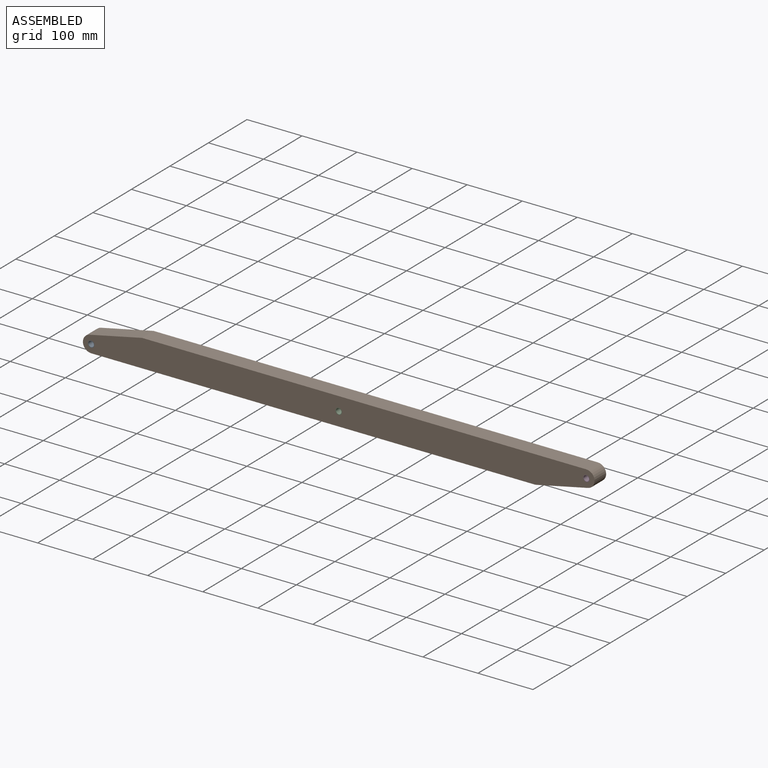
[diagram: assembled view]
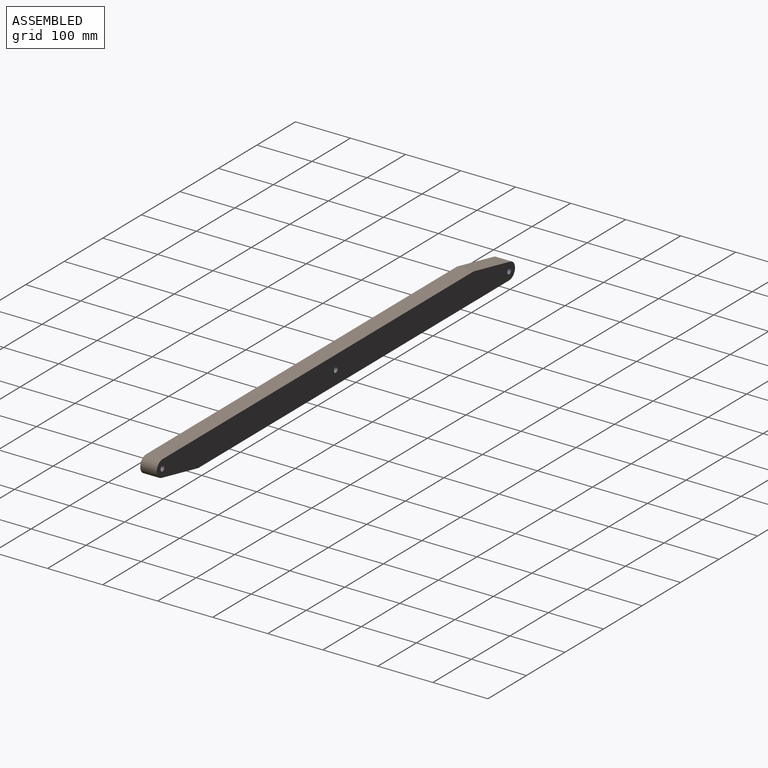
[diagram: assembled view, second angle]
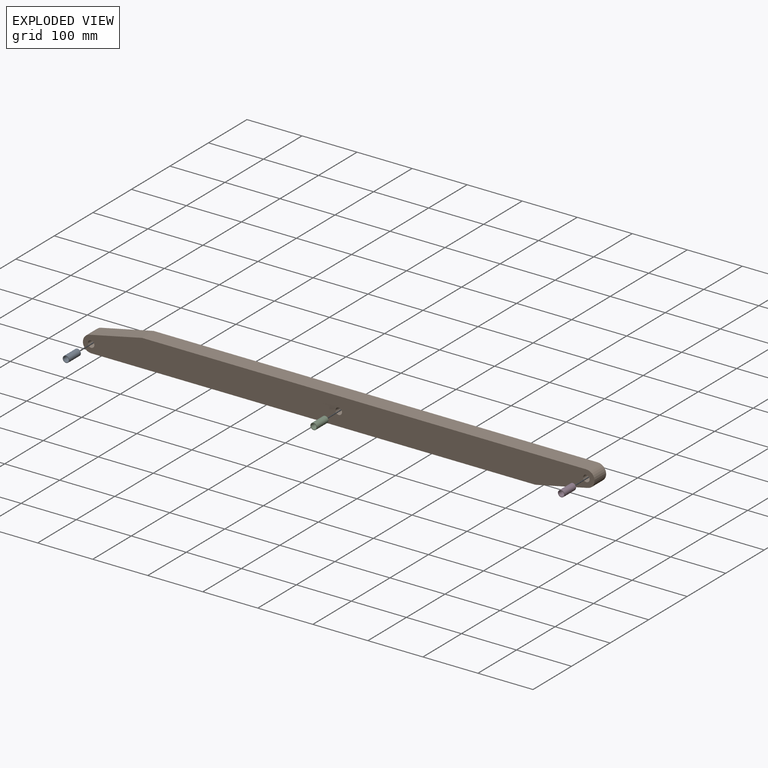
[diagram: exploded view]
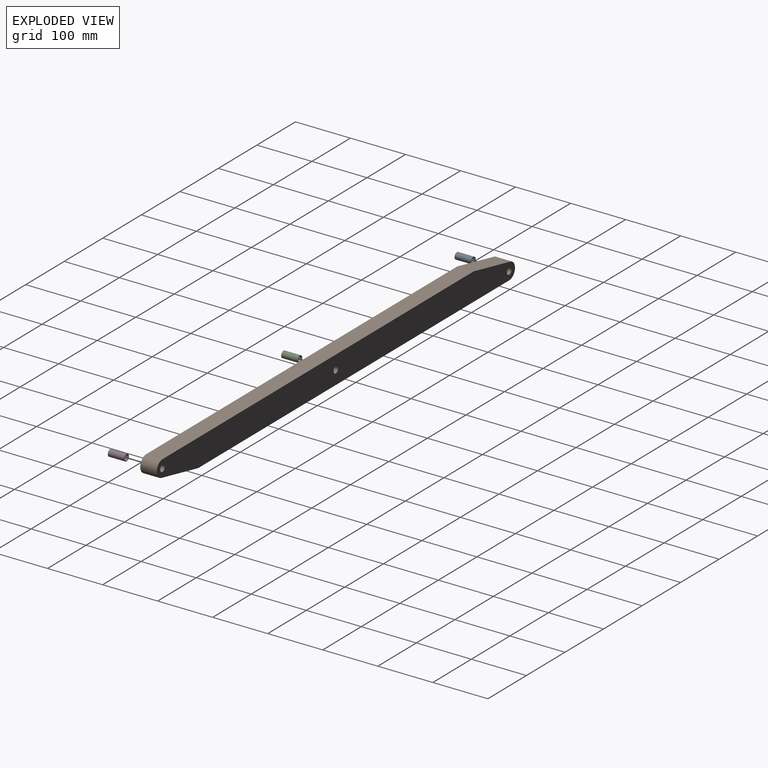
[diagram: exploded view, second angle]
ASSEMBLY  parts=4 mates=3
PART A: 4 faces, bbox 12x30x12 mm
  f0: cylinder r=5mm len=30mm, axis (0,1,0), area 942.5mm2, adj f2,f3
  f1: cylinder r=6mm len=30mm, axis (0,1,0), area 1131mm2, adj f2,f3
  f2: plane 12x12mm, normal (0,-1,0), area 34.6mm2, adj f0,f1
  f3: plane 12x12mm, normal (0,1,0), area 34.6mm2, adj f0,f1
PART B: 11 faces, bbox 929.8x30x50 mm
  f0: plane 95.63x30mm, normal (0.21,0,-0.98), area 2933.1mm2, adj f1,f7,f9,f10
  f1: cylinder r=15mm len=30mm, axis (0,1,0), area 1319.5mm2, adj f0,f2,f9,f10
  f2: plane 807.26x30mm, normal (0,0,1), area 24217.9mm2, adj f1,f3,f9,f10
  f3: plane 95.63x30mm, normal (-0.21,0,0.98), area 2933.1mm2, adj f2,f4,f9,f10
  f4: cylinder r=15mm len=30mm, axis (0,1,0), area 1319.5mm2, adj f3,f7,f9,f10
  f5: cylinder r=6mm len=30mm, axis (0,1,0), area 1131mm2, adj f9,f10
  f6: cylinder r=6mm len=30mm, axis (0,1,0), area 1131mm2, adj f9,f10
  f7: plane 807.26x30mm, normal (0,0,-1), area 24217.9mm2, adj f0,f4,f9,f10
  f8: cylinder r=6mm len=30mm, axis (0,1,0), area 1131mm2, adj f9,f10
  f9: plane 929.78x50mm, normal (0,-1,0), area 43537.8mm2, adj f0,f1,f2,f3,f4,f5,f6,f7
  f10: plane 929.78x50mm, normal (0,1,0), area 43537.8mm2, adj f0,f1,f2,f3,f4,f5,f6,f7
PART C: same geometry as A
PART D: same geometry as A
PLACE A rot(axis=(0,1,0),126.6deg) t=(-600.67,-101.83,-67.66)mm
PLACE B t=(-150.78,-101.83,-57.66)mm fixed
PLACE C t=(-150.78,-101.83,-57.66)mm
PLACE D rot(axis=(0,-1,0),7deg) t=(299.11,-101.83,-47.66)mm
MATE cylindrical B.f4 <-> A.f0  axis (0,1,0) through (-600.67,-131.83,-67.66)mm
MATE cylindrical B.f5 <-> C.f1  axis (0,1,0) through (-150.78,-131.83,-57.66)mm
MATE cylindrical D.f1 <-> B.f1  axis (0,-1,0) through (299.11,-131.83,-47.66)mm
